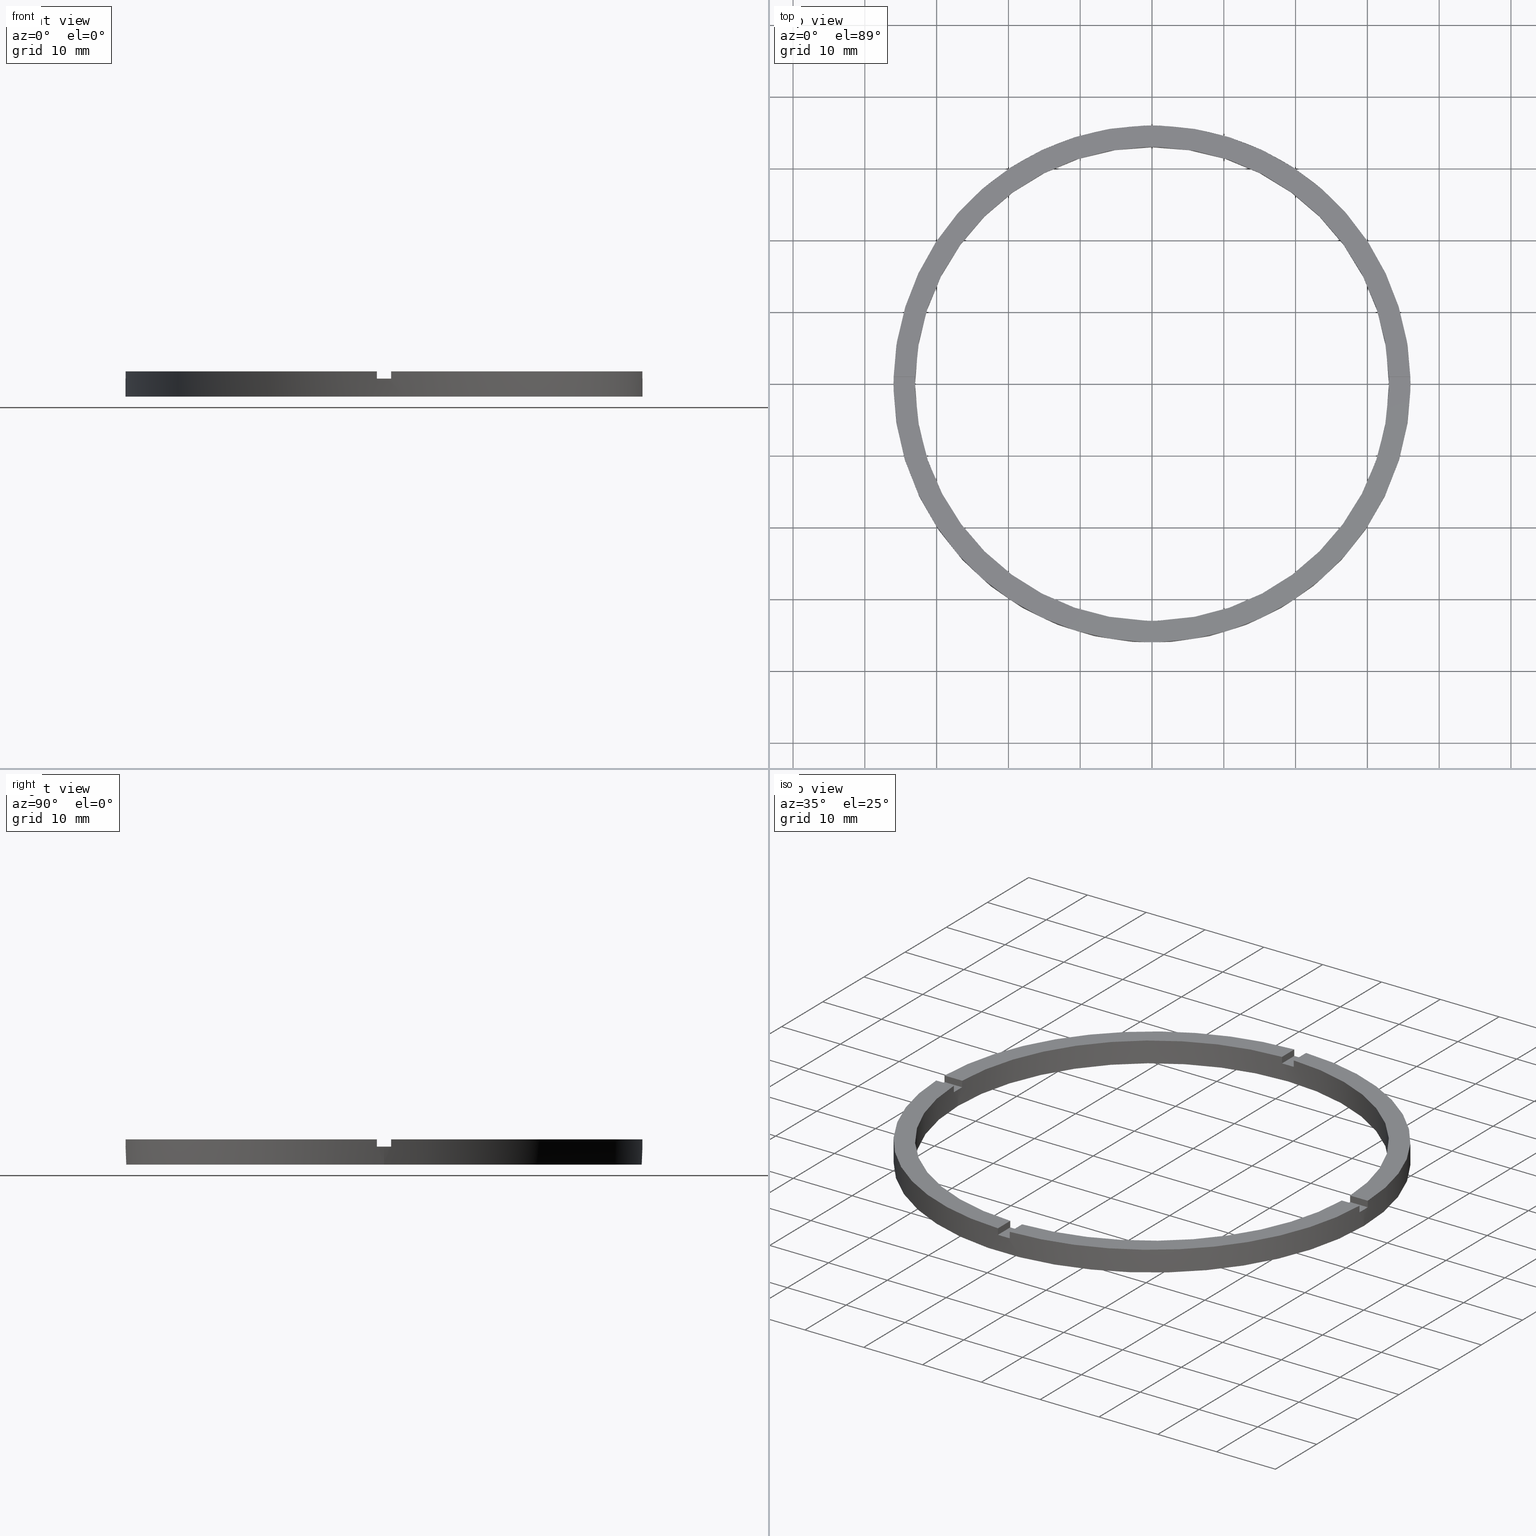
[diagram: canonical four-view strip — front | top / right | iso, engineering-drawing reading convention]
A machine part, canonical four-view strip (front | top / right | iso — engineering-drawing reading convention). The complete STEP part file that produces these views, byte-faithful:
ISO-10303-21;
HEADER;
FILE_DESCRIPTION (( 'STEP AP203' ),
    '1' );
FILE_NAME ('514148.step',
    '2024-12-26T02:42:11',
    ( 'MSI' ),
    ( '' ),
    'SwSTEP 2.0',
    'SolidWorks 2020',
    '' );
FILE_SCHEMA (( 'CONFIG_CONTROL_DESIGN' ));
ENDSEC;

DATA;
#1 = DIRECTION ( 'NONE',  ( -0.000000000000000000, -0.000000000000000000, -1.000000000000000000 ) ) ;
#2 = CARTESIAN_POINT ( 'NONE',  ( 0.9999999999998384625, -26.00000000000017408, 2.500000000000000000 ) ) ;
#3 = ADVANCED_FACE ( 'NONE', ( #52 ), #758, .F. ) ;
#4 = AXIS2_PLACEMENT_3D ( 'NONE', #393, #245, #534 ) ;
#5 = DIRECTION ( 'NONE',  ( -1.301042606982605074E-16, 1.000000000000000000, 0.000000000000000000 ) ) ;
#6 = CARTESIAN_POINT ( 'NONE',  ( 0.000000000000000000, 0.000000000000000000, 0.000000000000000000 ) ) ;
#7 = EDGE_CURVE ( 'NONE', #181, #356, #21, .T. ) ;
#8 = EDGE_CURVE ( 'NONE', #168, #124, #541, .T. ) ;
#9 = DIRECTION ( 'NONE',  ( 1.951563910473907735E-16, -1.000000000000000000, 0.000000000000000000 ) ) ;
#10 = AXIS2_PLACEMENT_3D ( 'NONE', #440, #682, #284 ) ;
#11 = LINE ( 'NONE', #764, #562 ) ;
#12 = CARTESIAN_POINT ( 'NONE',  ( -32.98484500494128469, -1.000000000000026645, 3.500000000000000000 ) ) ;
#13 = CIRCLE ( 'NONE', #56, 33.00000000000000000 ) ;
#14 = LINE ( 'NONE', #48, #533 ) ;
#15 = LINE ( 'NONE', #208, #17 ) ;
#16 = CARTESIAN_POINT ( 'NONE',  ( -32.98484500494128469, -1.000000000000026645, 3.500000000000000000 ) ) ;
#17 = VECTOR ( 'NONE', #385, 1000.000000000000000 ) ;
#18 = CARTESIAN_POINT ( 'NONE',  ( -32.98484500494129179, 0.9999999999999733546, 3.500000000000000000 ) ) ;
#19 = CARTESIAN_POINT ( 'NONE',  ( 0.000000000000000000, 0.000000000000000000, 3.500000000000000000 ) ) ;
#20 = CIRCLE ( 'NONE', #213, 36.00000000000000000 ) ;
#21 = LINE ( 'NONE', #710, #282 ) ;
#22 = DIRECTION ( 'NONE',  ( 0.000000000000000000, 0.000000000000000000, 1.000000000000000000 ) ) ;
#23 = EDGE_CURVE ( 'NONE', #322, #103, #267, .T. ) ;
#24 = LINE ( 'NONE', #230, #285 ) ;
#25 = VECTOR ( 'NONE', #231, 1000.000000000000000 ) ;
#26 = FACE_OUTER_BOUND ( 'NONE', #66, .T. ) ;
#27 = LINE ( 'NONE', #477, #288 ) ;
#28 = DIRECTION ( 'NONE',  ( 0.000000000000000000, 0.000000000000000000, 1.000000000000000000 ) ) ;
#29 = CIRCLE ( 'NONE', #518, 33.00000000000000000 ) ;
#30 = CARTESIAN_POINT ( 'NONE',  ( -32.98484500494129179, 0.9999999999999733546, 3.500000000000000000 ) ) ;
#31 = CIRCLE ( 'NONE', #675, 36.00000000000000000 ) ;
#32 = DIRECTION ( 'NONE',  ( 0.000000000000000000, 0.000000000000000000, 1.000000000000000000 ) ) ;
#33 = FACE_OUTER_BOUND ( 'NONE', #359, .T. ) ;
#34 = LINE ( 'NONE', #452, #281 ) ;
#35 = LINE ( 'NONE', #508, #297 ) ;
#36 = ORIENTED_EDGE ( 'NONE', *, *, #370, .F. ) ;
#37 = DIRECTION ( 'NONE',  ( 0.000000000000000000, 0.000000000000000000, 1.000000000000000000 ) ) ;
#38 = VECTOR ( 'NONE', #376, 1000.000000000000000 ) ;
#39 = CARTESIAN_POINT ( 'NONE',  ( 35.98610843089316091, 0.9999999999998421263, 3.500000000000000000 ) ) ;
#40 = VECTOR ( 'NONE', #273, 1000.000000000000000 ) ;
#41 = VERTEX_POINT ( 'NONE', #226 ) ;
#42 = CIRCLE ( 'NONE', #471, 36.00000000000000000 ) ;
#43 = ORIENTED_EDGE ( 'NONE', *, *, #690, .F. ) ;
#44 = VERTEX_POINT ( 'NONE', #564 ) ;
#45 = VERTEX_POINT ( 'NONE', #110 ) ;
#46 = VECTOR ( 'NONE', #260, 1000.000000000000000 ) ;
#47 = VERTEX_POINT ( 'NONE', #480 ) ;
#48 = CARTESIAN_POINT ( 'NONE',  ( 25.99999999999998934, 0.9999999999998414602, 3.500000000000000000 ) ) ;
#49 = ORIENTED_EDGE ( 'NONE', *, *, #751, .F. ) ;
#50 = CC_DESIGN_DATE_AND_TIME_ASSIGNMENT ( #605, #209, ( #771 ) ) ;
#51 = VECTOR ( 'NONE', #217, 1000.000000000000000 ) ;
#52 = FACE_OUTER_BOUND ( 'NONE', #293, .T. ) ;
#53 = LINE ( 'NONE', #773, #40 ) ;
#54 = ORIENTED_EDGE ( 'NONE', *, *, #407, .F. ) ;
#55 = ORIENTED_EDGE ( 'NONE', *, *, #259, .F. ) ;
#56 = AXIS2_PLACEMENT_3D ( 'NONE', #737, #130, #739 ) ;
#57 = APPROVAL_DATE_TIME ( #597, #653 ) ;
#58 = EDGE_CURVE ( 'NONE', #405, #451, #11, .T. ) ;
#59 = CARTESIAN_POINT ( 'NONE',  ( -1.000000000000025091, 32.98484500494128469, 2.500000000000000000 ) ) ;
#60 = DIRECTION ( 'NONE',  ( 0.000000000000000000, 0.000000000000000000, 1.000000000000000000 ) ) ;
#61 = CARTESIAN_POINT ( 'NONE',  ( -1.000000000000160760, -32.98484500494128469, 2.500000000000000000 ) ) ;
#62 = AXIS2_PLACEMENT_3D ( 'NONE', #733, #517, #484 ) ;
#63 = PERSON_AND_ORGANIZATION ( #528, #603 ) ;
#64 = DIRECTION ( 'NONE',  ( 0.000000000000000000, 0.000000000000000000, 1.000000000000000000 ) ) ;
#65 = APPROVAL_PERSON_ORGANIZATION ( #338, #653, #279 ) ;
#66 = EDGE_LOOP ( 'NONE', ( #448, #142, #657, #179 ) ) ;
#67 = DIRECTION ( 'NONE',  ( -1.000000000000000000, 0.000000000000000000, 0.000000000000000000 ) ) ;
#68 = CALENDAR_DATE ( 2024, 26, 12 ) ;
#69 = ORIENTED_EDGE ( 'NONE', *, *, #238, .F. ) ;
#70 = DIRECTION ( 'NONE',  ( 1.000000000000000000, 0.000000000000000000, 0.000000000000000000 ) ) ;
#71 = PERSON_AND_ORGANIZATION ( #528, #603 ) ;
#72 = EDGE_CURVE ( 'NONE', #654, #573, #552, .T. ) ;
#73 = PERSON_AND_ORGANIZATION ( #528, #603 ) ;
#74 = EDGE_LOOP ( 'NONE', ( #616, #183, #79, #698 ) ) ;
#75 = COORDINATED_UNIVERSAL_TIME_OFFSET ( 8, 0, .AHEAD. ) ;
#76 =( NAMED_UNIT ( * ) PLANE_ANGLE_UNIT ( ) SI_UNIT ( $, .RADIAN. ) );
#77 = VERTEX_POINT ( 'NONE', #774 ) ;
#78 = DIRECTION ( 'NONE',  ( -0.000000000000000000, -0.000000000000000000, -1.000000000000000000 ) ) ;
#79 = ORIENTED_EDGE ( 'NONE', *, *, #269, .F. ) ;
#80 = CARTESIAN_POINT ( 'NONE',  ( 0.000000000000000000, 0.000000000000000000, 3.500000000000000000 ) ) ;
#81 = CALENDAR_DATE ( 2024, 26, 12 ) ;
#82 = ORIENTED_EDGE ( 'NONE', *, *, #106, .T. ) ;
#83 = CALENDAR_DATE ( 2024, 26, 12 ) ;
#84 = LOCAL_TIME ( 10, 42, 11.00000000000000000, #331 ) ;
#85 = ADVANCED_FACE ( 'NONE', ( #274, #280 ), #778, .F. ) ;
#86 = APPROVAL_PERSON_ORGANIZATION ( #607, #542, #747 ) ;
#87 = CALENDAR_DATE ( 2024, 26, 12 ) ;
#88 = VECTOR ( 'NONE', #1, 1000.000000000000000 ) ;
#89 = ORIENTED_EDGE ( 'NONE', *, *, #759, .T. ) ;
#90 = CIRCLE ( 'NONE', #262, 33.00000000000000000 ) ;
#91 = DIRECTION ( 'NONE',  ( -0.000000000000000000, -0.000000000000000000, -1.000000000000000000 ) ) ;
#92 = ORIENTED_EDGE ( 'NONE', *, *, #192, .F. ) ;
#93 = AXIS2_PLACEMENT_3D ( 'NONE', #644, #78, #323 ) ;
#94 = VERTEX_POINT ( 'NONE', #523 ) ;
#95 = ORIENTED_EDGE ( 'NONE', *, *, #7, .T. ) ;
#96 = LINE ( 'NONE', #380, #121 ) ;
#97 = ORIENTED_EDGE ( 'NONE', *, *, #224, .F. ) ;
#98 = CC_DESIGN_PERSON_AND_ORGANIZATION_ASSIGNMENT ( #73, #203, ( #595 ) ) ;
#99 = DIRECTION ( 'NONE',  ( 1.301042606982605074E-16, -1.000000000000000000, 0.000000000000000000 ) ) ;
#100 = CIRCLE ( 'NONE', #350, 33.00000000000000000 ) ;
#101 = LINE ( 'NONE', #783, #399 ) ;
#102 = CARTESIAN_POINT ( 'NONE',  ( -1.000000000000160760, -32.98484500494128469, 3.500000000000000000 ) ) ;
#103 = VERTEX_POINT ( 'NONE', #59 ) ;
#104 = AXIS2_PLACEMENT_3D ( 'NONE', #681, #729, #237 ) ;
#105 = VERTEX_POINT ( 'NONE', #39 ) ;
#106 = EDGE_CURVE ( 'NONE', #405, #47, #532, .T. ) ;
#107 = CIRCLE ( 'NONE', #425, 36.00000000000000000 ) ;
#108 = CARTESIAN_POINT ( 'NONE',  ( 33.00000000000000000, 4.041334437186266200E-15, 0.000000000000000000 ) ) ;
#109 = ORIENTED_EDGE ( 'NONE', *, *, #160, .F. ) ;
#110 = CARTESIAN_POINT ( 'NONE',  ( 0.9999999999998397948, -35.98610843089316091, 2.500000000000000000 ) ) ;
#111 = AXIS2_PLACEMENT_3D ( 'NONE', #258, #28, #114 ) ;
#112 = VERTEX_POINT ( 'NONE', #487 ) ;
#113 = VERTEX_POINT ( 'NONE', #360 ) ;
#114 = DIRECTION ( 'NONE',  ( 1.000000000000000000, 0.000000000000000000, 0.000000000000000000 ) ) ;
#115 = VERTEX_POINT ( 'NONE', #673 ) ;
#116 = VECTOR ( 'NONE', #537, 1000.000000000000000 ) ;
#117 = EDGE_CURVE ( 'NONE', #168, #459, #277, .T. ) ;
#118 = CARTESIAN_POINT ( 'NONE',  ( 32.98484500494129179, 0.9999999999998419042, 3.500000000000000000 ) ) ;
#119 = DIRECTION ( 'NONE',  ( 0.000000000000000000, 0.000000000000000000, 1.000000000000000000 ) ) ;
#120 = ORIENTED_EDGE ( 'NONE', *, *, #612, .T. ) ;
#121 = VECTOR ( 'NONE', #442, 1000.000000000000000 ) ;
#122 = EDGE_CURVE ( 'NONE', #112, #164, #289, .T. ) ;
#123 = DIRECTION ( 'NONE',  ( 0.000000000000000000, 0.000000000000000000, 1.000000000000000000 ) ) ;
#124 = VERTEX_POINT ( 'NONE', #30 ) ;
#125 = CARTESIAN_POINT ( 'NONE',  ( 0.9999999999999749090, 32.98484500494129179, 3.500000000000000000 ) ) ;
#126 = VECTOR ( 'NONE', #212, 1000.000000000000000 ) ;
#127 = LINE ( 'NONE', #162, #384 ) ;
#128 = ORIENTED_EDGE ( 'NONE', *, *, #519, .T. ) ;
#129 = FACE_OUTER_BOUND ( 'NONE', #705, .T. ) ;
#130 = DIRECTION ( 'NONE',  ( 0.000000000000000000, 0.000000000000000000, 1.000000000000000000 ) ) ;
#131 = EDGE_LOOP ( 'NONE', ( #352, #667, #89, #201, #467, #575 ) ) ;
#132 = CARTESIAN_POINT ( 'NONE',  ( 0.000000000000000000, 0.000000000000000000, 2.500000000000000000 ) ) ;
#133 = VERTEX_POINT ( 'NONE', #125 ) ;
#134 = FACE_OUTER_BOUND ( 'NONE', #432, .T. ) ;
#135 = ORIENTED_EDGE ( 'NONE', *, *, #8, .F. ) ;
#136 = VECTOR ( 'NONE', #119, 1000.000000000000000 ) ;
#137 = ORIENTED_EDGE ( 'NONE', *, *, #497, .T. ) ;
#138 = DIRECTION ( 'NONE',  ( 0.000000000000000000, 0.000000000000000000, 1.000000000000000000 ) ) ;
#139 = ORIENTED_EDGE ( 'NONE', *, *, #7, .F. ) ;
#140 = CARTESIAN_POINT ( 'NONE',  ( 0.000000000000000000, 0.000000000000000000, 3.500000000000000000 ) ) ;
#141 = APPLICATION_PROTOCOL_DEFINITION ( 'international standard', 'config_control_design', 1994, #153 ) ;
#142 = ORIENTED_EDGE ( 'NONE', *, *, #269, .T. ) ;
#143 = VECTOR ( 'NONE', #123, 1000.000000000000000 ) ;
#144 = DIRECTION ( 'NONE',  ( 1.000000000000000000, 0.000000000000000000, 0.000000000000000000 ) ) ;
#145 = AXIS2_PLACEMENT_3D ( 'NONE', #140, #244, #286 ) ;
#146 = CARTESIAN_POINT ( 'NONE',  ( 25.99999999999998934, 0.9999999999998414602, 2.500000000000000000 ) ) ;
#147 = FACE_OUTER_BOUND ( 'NONE', #296, .T. ) ;
#148 = DIRECTION ( 'NONE',  ( 1.000000000000000000, 0.000000000000000000, 0.000000000000000000 ) ) ;
#149 = CIRCLE ( 'NONE', #479, 33.00000000000000000 ) ;
#150 = CC_DESIGN_PERSON_AND_ORGANIZATION_ASSIGNMENT ( #71, #627, ( #595 ) ) ;
#151 = DIRECTION ( 'NONE',  ( -0.000000000000000000, -0.000000000000000000, -1.000000000000000000 ) ) ;
#152 = DIRECTION ( 'NONE',  ( 1.000000000000000000, 0.000000000000000000, 0.000000000000000000 ) ) ;
#153 = APPLICATION_CONTEXT ( 'configuration controlled 3d designs of mechanical parts and assemblies' ) ;
#154 = CARTESIAN_POINT ( 'NONE',  ( 35.98610843089316091, 0.9999999999998421263, 3.500000000000000000 ) ) ;
#155 = EDGE_CURVE ( 'NONE', #105, #181, #14, .T. ) ;
#156 = AXIS2_PLACEMENT_3D ( 'NONE', #358, #765, #727 ) ;
#157 = PLANE ( 'NONE',  #429 ) ;
#158 = EDGE_CURVE ( 'NONE', #330, #41, #276, .T. ) ;
#159 = ADVANCED_FACE ( 'NONE', ( #26 ), #366, .T. ) ;
#160 = EDGE_CURVE ( 'NONE', #112, #624, #13, .T. ) ;
#161 = DIRECTION ( 'NONE',  ( 1.000000000000000000, 1.301042606982605074E-16, 0.000000000000000000 ) ) ;
#162 = CARTESIAN_POINT ( 'NONE',  ( -33.00000000000000000, 0.000000000000000000, 3.500000000000000000 ) ) ;
#163 = DIRECTION ( 'NONE',  ( 0.000000000000000000, 0.000000000000000000, 1.000000000000000000 ) ) ;
#164 = VERTEX_POINT ( 'NONE', #187 ) ;
#165 = DIRECTION ( 'NONE',  ( -0.000000000000000000, -0.000000000000000000, -1.000000000000000000 ) ) ;
#166 = ORIENTED_EDGE ( 'NONE', *, *, #612, .F. ) ;
#167 = DIRECTION ( 'NONE',  ( 1.000000000000000000, 0.000000000000000000, 0.000000000000000000 ) ) ;
#168 = VERTEX_POINT ( 'NONE', #431 ) ;
#169 = AXIS2_PLACEMENT_3D ( 'NONE', #182, #64, #227 ) ;
#170 = EDGE_LOOP ( 'NONE', ( #570, #439 ) ) ;
#171 = ORIENTED_EDGE ( 'NONE', *, *, #680, .T. ) ;
#172 = EDGE_CURVE ( 'NONE', #711, #115, #29, .T. ) ;
#173 = DIRECTION ( 'NONE',  ( 1.000000000000000000, 0.000000000000000000, -0.000000000000000000 ) ) ;
#174 = AXIS2_PLACEMENT_3D ( 'NONE', #606, #60, #378 ) ;
#175 = ORIENTED_EDGE ( 'NONE', *, *, #158, .T. ) ;
#176 = DIRECTION ( 'NONE',  ( -0.000000000000000000, 0.000000000000000000, 1.000000000000000000 ) ) ;
#177 = CARTESIAN_POINT ( 'NONE',  ( -1.000000000000025091, 35.98610843089315381, 3.500000000000000000 ) ) ;
#178 = ORIENTED_EDGE ( 'NONE', *, *, #720, .T. ) ;
#179 = ORIENTED_EDGE ( 'NONE', *, *, #58, .T. ) ;
#180 = PLANE ( 'NONE',  #186 ) ;
#181 = VERTEX_POINT ( 'NONE', #118 ) ;
#182 = CARTESIAN_POINT ( 'NONE',  ( 0.000000000000000000, 0.000000000000000000, 0.000000000000000000 ) ) ;
#183 = ORIENTED_EDGE ( 'NONE', *, *, #345, .T. ) ;
#184 = ORIENTED_EDGE ( 'NONE', *, *, #602, .T. ) ;
#185 = VERTEX_POINT ( 'NONE', #438 ) ;
#186 = AXIS2_PLACEMENT_3D ( 'NONE', #450, #502, #781 ) ;
#187 = CARTESIAN_POINT ( 'NONE',  ( 35.98610843089315381, -1.000000000000157874, 2.500000000000000000 ) ) ;
#188 = ORIENTED_EDGE ( 'NONE', *, *, #8, .T. ) ;
#189 = DIRECTION ( 'NONE',  ( 1.000000000000000000, 0.000000000000000000, 0.000000000000000000 ) ) ;
#190 = ORIENTED_EDGE ( 'NONE', *, *, #433, .T. ) ;
#191 = EDGE_LOOP ( 'NONE', ( #54, #43, #726, #568 ) ) ;
#192 = EDGE_CURVE ( 'NONE', #659, #356, #24, .T. ) ;
#193 = ORIENTED_EDGE ( 'NONE', *, *, #406, .T. ) ;
#194 = CARTESIAN_POINT ( 'NONE',  ( 0.000000000000000000, 0.000000000000000000, 2.500000000000000000 ) ) ;
#195 = CARTESIAN_POINT ( 'NONE',  ( 0.9999999999999749090, 25.99999999999999645, 2.500000000000000000 ) ) ;
#196 = DATE_TIME_ROLE ( 'classification_date' ) ;
#197 = ORIENTED_EDGE ( 'NONE', *, *, #602, .F. ) ;
#198 = EDGE_LOOP ( 'NONE', ( #578, #389, #613, #413, #109, #311 ) ) ;
#199 = ORIENTED_EDGE ( 'NONE', *, *, #721, .F. ) ;
#200 = CARTESIAN_POINT ( 'NONE',  ( 0.000000000000000000, 0.000000000000000000, 2.500000000000000000 ) ) ;
#201 = ORIENTED_EDGE ( 'NONE', *, *, #776, .F. ) ;
#202 = DIRECTION ( 'NONE',  ( 1.000000000000000000, -0.000000000000000000, 0.000000000000000000 ) ) ;
#203 = PERSON_AND_ORGANIZATION_ROLE ( 'design_supplier' ) ;
#204 = ORIENTED_EDGE ( 'NONE', *, *, #259, .T. ) ;
#205 = ORIENTED_EDGE ( 'NONE', *, *, #23, .F. ) ;
#206 = CARTESIAN_POINT ( 'NONE',  ( -26.00000000000018119, -1.000000000000025091, 2.500000000000000000 ) ) ;
#207 = ORIENTED_EDGE ( 'NONE', *, *, #664, .T. ) ;
#208 = CARTESIAN_POINT ( 'NONE',  ( 36.00000000000000000, 4.408728476930470856E-15, 3.500000000000000000 ) ) ;
#209 = DATE_TIME_ROLE ( 'creation_date' ) ;
#210 =( NAMED_UNIT ( * ) SI_UNIT ( $, .STERADIAN. ) SOLID_ANGLE_UNIT ( ) );
#211 = APPROVAL ( #404, 'δָ��' ) ;
#212 = DIRECTION ( 'NONE',  ( -0.000000000000000000, -1.000000000000000000, -0.000000000000000000 ) ) ;
#213 = AXIS2_PLACEMENT_3D ( 'NONE', #589, #526, #745 ) ;
#214 = EDGE_CURVE ( 'NONE', #105, #691, #270, .T. ) ;
#215 = ADVANCED_FACE ( 'NONE', ( #547 ), #674, .T. ) ;
#216 = VECTOR ( 'NONE', #91, 1000.000000000000000 ) ;
#217 = DIRECTION ( 'NONE',  ( -0.000000000000000000, -0.000000000000000000, -1.000000000000000000 ) ) ;
#218 = CARTESIAN_POINT ( 'NONE',  ( 0.000000000000000000, 0.000000000000000000, 2.500000000000000000 ) ) ;
#219 = DIRECTION ( 'NONE',  ( -0.000000000000000000, -0.000000000000000000, -1.000000000000000000 ) ) ;
#220 = EDGE_CURVE ( 'NONE', #663, #113, #20, .T. ) ;
#221 = DIRECTION ( 'NONE',  ( 0.000000000000000000, 0.000000000000000000, 1.000000000000000000 ) ) ;
#222 = ADVANCED_FACE ( 'NONE', ( #555 ), #271, .T. ) ;
#223 = CARTESIAN_POINT ( 'NONE',  ( 0.000000000000000000, 0.000000000000000000, 0.000000000000000000 ) ) ;
#224 = EDGE_CURVE ( 'NONE', #94, #691, #34, .T. ) ;
#225 = DIRECTION ( 'NONE',  ( -1.000000000000000000, 0.000000000000000000, 0.000000000000000000 ) ) ;
#226 = CARTESIAN_POINT ( 'NONE',  ( 36.00000000000000000, 4.408728476930470856E-15, 0.000000000000000000 ) ) ;
#227 = DIRECTION ( 'NONE',  ( 1.000000000000000000, 0.000000000000000000, 0.000000000000000000 ) ) ;
#228 = CARTESIAN_POINT ( 'NONE',  ( 0.000000000000000000, 0.000000000000000000, 3.500000000000000000 ) ) ;
#229 = CIRCLE ( 'NONE', #754, 36.00000000000000000 ) ;
#230 = CARTESIAN_POINT ( 'NONE',  ( 25.99999999999998934, 0.9999999999998414602, 2.500000000000000000 ) ) ;
#231 = DIRECTION ( 'NONE',  ( -0.000000000000000000, -0.000000000000000000, -1.000000000000000000 ) ) ;
#232 = DIRECTION ( 'NONE',  ( 0.000000000000000000, -0.000000000000000000, 1.000000000000000000 ) ) ;
#233 = AXIS2_PLACEMENT_3D ( 'NONE', #80, #250, #316 ) ;
#234 = DIRECTION ( 'NONE',  ( 1.000000000000000000, 0.000000000000000000, 0.000000000000000000 ) ) ;
#235 = VECTOR ( 'NONE', #165, 1000.000000000000000 ) ;
#236 = SECURITY_CLASSIFICATION ( '', '', #287 ) ;
#237 = DIRECTION ( 'NONE',  ( 1.000000000000000000, 0.000000000000000000, 0.000000000000000000 ) ) ;
#238 = EDGE_CURVE ( 'NONE', #576, #659, #31, .T. ) ;
#239 = DIRECTION ( 'NONE',  ( 0.000000000000000000, 0.000000000000000000, 1.000000000000000000 ) ) ;
#240 = EDGE_CURVE ( 'NONE', #624, #356, #538, .T. ) ;
#241 = EDGE_CURVE ( 'NONE', #576, #41, #15, .T. ) ;
#242 = DIRECTION ( 'NONE',  ( 0.000000000000000000, 0.000000000000000000, 1.000000000000000000 ) ) ;
#243 = DIRECTION ( 'NONE',  ( 1.000000000000000000, 0.000000000000000000, 0.000000000000000000 ) ) ;
#244 = DIRECTION ( 'NONE',  ( 0.000000000000000000, 0.000000000000000000, 1.000000000000000000 ) ) ;
#245 = DIRECTION ( 'NONE',  ( -0.000000000000000000, -0.000000000000000000, -1.000000000000000000 ) ) ;
#246 = EDGE_CURVE ( 'NONE', #663, #330, #551, .T. ) ;
#247 = DIRECTION ( 'NONE',  ( 1.000000000000000000, 0.000000000000000000, 0.000000000000000000 ) ) ;
#248 = MECHANICAL_CONTEXT ( 'NONE', #419, 'mechanical' ) ;
#249 = CARTESIAN_POINT ( 'NONE',  ( 0.9999999999998384625, -26.00000000000017408, 2.500000000000000000 ) ) ;
#250 = DIRECTION ( 'NONE',  ( 0.000000000000000000, 0.000000000000000000, 1.000000000000000000 ) ) ;
#251 = PLANE ( 'NONE',  #522 ) ;
#252 = ADVANCED_FACE ( 'NONE', ( #294 ), #157, .F. ) ;
#253 = DIRECTION ( 'NONE',  ( -0.000000000000000000, -0.000000000000000000, -1.000000000000000000 ) ) ;
#254 = AXIS2_PLACEMENT_3D ( 'NONE', #132, #685, #746 ) ;
#255 = CARTESIAN_POINT ( 'NONE',  ( 0.9999999999999749090, 25.99999999999999645, 2.500000000000000000 ) ) ;
#256 = CC_DESIGN_SECURITY_CLASSIFICATION ( #236, ( #595 ) ) ;
#257 = AXIS2_PLACEMENT_3D ( 'NONE', #409, #9, #514 ) ;
#258 = CARTESIAN_POINT ( 'NONE',  ( 0.000000000000000000, 0.000000000000000000, 3.500000000000000000 ) ) ;
#259 = EDGE_CURVE ( 'NONE', #124, #44, #35, .T. ) ;
#260 = DIRECTION ( 'NONE',  ( -0.000000000000000000, -0.000000000000000000, -1.000000000000000000 ) ) ;
#261 = EDGE_CURVE ( 'NONE', #115, #711, #375, .T. ) ;
#262 = AXIS2_PLACEMENT_3D ( 'NONE', #687, #621, #247 ) ;
#263 = DIRECTION ( 'NONE',  ( -0.000000000000000000, -0.000000000000000000, -1.000000000000000000 ) ) ;
#264 = DIRECTION ( 'NONE',  ( 0.000000000000000000, 0.000000000000000000, 1.000000000000000000 ) ) ;
#265 = EDGE_CURVE ( 'NONE', #133, #691, #641, .T. ) ;
#266 = CARTESIAN_POINT ( 'NONE',  ( 0.9999999999998397948, -35.98610843089316091, 3.500000000000000000 ) ) ;
#267 = LINE ( 'NONE', #703, #558 ) ;
#268 = CARTESIAN_POINT ( 'NONE',  ( 0.000000000000000000, 0.000000000000000000, 3.500000000000000000 ) ) ;
#269 = EDGE_CURVE ( 'NONE', #45, #47, #382, .T. ) ;
#270 = CIRCLE ( 'NONE', #546, 36.00000000000000000 ) ;
#271 = CYLINDRICAL_SURFACE ( 'NONE', #4, 36.00000000000000000 ) ;
#272 = CARTESIAN_POINT ( 'NONE',  ( 0.000000000000000000, 0.000000000000000000, 3.500000000000000000 ) ) ;
#273 = DIRECTION ( 'NONE',  ( -1.000000000000000000, -1.951563910473907735E-16, 0.000000000000000000 ) ) ;
#274 = FACE_OUTER_BOUND ( 'NONE', #170, .T. ) ;
#275 = VECTOR ( 'NONE', #283, 1000.000000000000000 ) ;
#276 = CIRCLE ( 'NONE', #169, 36.00000000000000000 ) ;
#277 = CIRCLE ( 'NONE', #401, 33.00000000000000000 ) ;
#278 = DIRECTION ( 'NONE',  ( -0.000000000000000000, -0.000000000000000000, -1.000000000000000000 ) ) ;
#279 = APPROVAL_ROLE ( '' ) ;
#280 = FACE_BOUND ( 'NONE', #722, .T. ) ;
#281 = VECTOR ( 'NONE', #503, 1000.000000000000000 ) ;
#282 = VECTOR ( 'NONE', #253, 1000.000000000000000 ) ;
#283 = DIRECTION ( 'NONE',  ( 1.000000000000000000, 6.505213034913025371E-17, 0.000000000000000000 ) ) ;
#284 = DIRECTION ( 'NONE',  ( 1.000000000000000000, 0.000000000000000000, 0.000000000000000000 ) ) ;
#285 = VECTOR ( 'NONE', #353, 1000.000000000000000 ) ;
#286 = DIRECTION ( 'NONE',  ( 1.000000000000000000, 0.000000000000000000, 0.000000000000000000 ) ) ;
#287 = SECURITY_CLASSIFICATION_LEVEL ( 'unclassified' ) ;
#288 = VECTOR ( 'NONE', #535, 1000.000000000000000 ) ;
#289 = LINE ( 'NONE', #670, #275 ) ;
#290 = FACE_OUTER_BOUND ( 'NONE', #732, .T. ) ;
#291 = VECTOR ( 'NONE', #151, 1000.000000000000000 ) ;
#292 = AXIS2_PLACEMENT_3D ( 'NONE', #671, #239, #367 ) ;
#293 = EDGE_LOOP ( 'NONE', ( #699, #730, #714, #694 ) ) ;
#294 = FACE_OUTER_BOUND ( 'NONE', #444, .T. ) ;
#295 = CARTESIAN_POINT ( 'NONE',  ( 0.000000000000000000, 0.000000000000000000, 2.500000000000000000 ) ) ;
#296 = EDGE_LOOP ( 'NONE', ( #302, #49, #700, #325 ) ) ;
#297 = VECTOR ( 'NONE', #463, 1000.000000000000000 ) ;
#298 = FACE_OUTER_BOUND ( 'NONE', #638, .T. ) ;
#299 = CC_DESIGN_PERSON_AND_ORGANIZATION_ASSIGNMENT ( #341, #619, ( #771 ) ) ;
#300 = LINE ( 'NONE', #708, #560 ) ;
#301 = FACE_OUTER_BOUND ( 'NONE', #600, .T. ) ;
#302 = ORIENTED_EDGE ( 'NONE', *, *, #72, .F. ) ;
#303 = CARTESIAN_POINT ( 'NONE',  ( 0.000000000000000000, 0.000000000000000000, 3.500000000000000000 ) ) ;
#304 = DIRECTION ( 'NONE',  ( 0.000000000000000000, 0.000000000000000000, 1.000000000000000000 ) ) ;
#305 = LINE ( 'NONE', #561, #313 ) ;
#306 = VERTEX_POINT ( 'NONE', #780 ) ;
#307 = ORIENTED_EDGE ( 'NONE', *, *, #433, .F. ) ;
#308 = CYLINDRICAL_SURFACE ( 'NONE', #587, 33.00000000000000000 ) ;
#309 = ORIENTED_EDGE ( 'NONE', *, *, #680, .F. ) ;
#310 = LINE ( 'NONE', #473, #577 ) ;
#311 = ORIENTED_EDGE ( 'NONE', *, *, #122, .T. ) ;
#312 = ORIENTED_EDGE ( 'NONE', *, *, #155, .F. ) ;
#313 = VECTOR ( 'NONE', #633, 1000.000000000000000 ) ;
#314 = ORIENTED_EDGE ( 'NONE', *, *, #430, .T. ) ;
#315 = CARTESIAN_POINT ( 'NONE',  ( 0.9999999999999749090, 32.98484500494129179, 2.500000000000000000 ) ) ;
#316 = DIRECTION ( 'NONE',  ( 1.000000000000000000, 0.000000000000000000, 0.000000000000000000 ) ) ;
#317 = CIRCLE ( 'NONE', #411, 36.00000000000000000 ) ;
#318 = EDGE_CURVE ( 'NONE', #306, #322, #374, .T. ) ;
#319 = PERSON_AND_ORGANIZATION ( #528, #603 ) ;
#320 = ORIENTED_EDGE ( 'NONE', *, *, #370, .T. ) ;
#321 = LINE ( 'NONE', #154, #88 ) ;
#322 = VERTEX_POINT ( 'NONE', #371 ) ;
#323 = DIRECTION ( 'NONE',  ( -1.000000000000000000, 0.000000000000000000, 0.000000000000000000 ) ) ;
#324 = EDGE_CURVE ( 'NONE', #94, #453, #357, .T. ) ;
#325 = ORIENTED_EDGE ( 'NONE', *, *, #721, .T. ) ;
#326 = CARTESIAN_POINT ( 'NONE',  ( 33.00000000000000000, 4.041334437186266200E-15, 2.500000000000000000 ) ) ;
#327 = DIRECTION ( 'NONE',  ( 0.000000000000000000, 1.000000000000000000, 0.000000000000000000 ) ) ;
#328 = ORIENTED_EDGE ( 'NONE', *, *, #246, .F. ) ;
#329 = COORDINATED_UNIVERSAL_TIME_OFFSET ( 8, 0, .AHEAD. ) ;
#330 = VERTEX_POINT ( 'NONE', #396 ) ;
#331 = COORDINATED_UNIVERSAL_TIME_OFFSET ( 8, 0, .AHEAD. ) ;
#332 = DIRECTION ( 'NONE',  ( 1.000000000000000000, 0.000000000000000000, 0.000000000000000000 ) ) ;
#333 = EDGE_LOOP ( 'NONE', ( #391, #95, #92, #665 ) ) ;
#334 = ADVANCED_FACE ( 'NONE', ( #129 ), #696, .F. ) ;
#335 = VECTOR ( 'NONE', #539, 1000.000000000000000 ) ;
#336 = ORIENTED_EDGE ( 'NONE', *, *, #678, .F. ) ;
#337 = PLANE ( 'NONE',  #62 ) ;
#338 = PERSON_AND_ORGANIZATION ( #528, #603 ) ;
#339 = ORIENTED_EDGE ( 'NONE', *, *, #241, .F. ) ;
#340 = CYLINDRICAL_SURFACE ( 'NONE', #549, 36.00000000000000000 ) ;
#341 = PERSON_AND_ORGANIZATION ( #528, #603 ) ;
#342 = ORIENTED_EDGE ( 'NONE', *, *, #418, .F. ) ;
#343 = DATE_AND_TIME ( #83, #611 ) ;
#344 = AXIS2_PLACEMENT_3D ( 'NONE', #496, #485, #524 ) ;
#345 = EDGE_CURVE ( 'NONE', #435, #47, #101, .T. ) ;
#346 = DIRECTION ( 'NONE',  ( -1.000000000000000000, -6.505213034913025371E-17, -0.000000000000000000 ) ) ;
#347 = LOCAL_TIME ( 10, 42, 11.00000000000000000, #610 ) ;
#348 = ORIENTED_EDGE ( 'NONE', *, *, #430, .F. ) ;
#349 = COORDINATED_UNIVERSAL_TIME_OFFSET ( 8, 0, .AHEAD. ) ;
#350 = AXIS2_PLACEMENT_3D ( 'NONE', #416, #615, #676 ) ;
#351 = LOCAL_TIME ( 10, 42, 11.00000000000000000, #349 ) ;
#352 = ORIENTED_EDGE ( 'NONE', *, *, #446, .T. ) ;
#353 = DIRECTION ( 'NONE',  ( -1.000000000000000000, -6.505213034913025371E-17, -0.000000000000000000 ) ) ;
#354 = ORIENTED_EDGE ( 'NONE', *, *, #172, .T. ) ;
#355 = ORIENTED_EDGE ( 'NONE', *, *, #23, .T. ) ;
#356 = VERTEX_POINT ( 'NONE', #741 ) ;
#357 = CIRCLE ( 'NONE', #254, 36.00000000000000000 ) ;
#358 = CARTESIAN_POINT ( 'NONE',  ( 0.000000000000000000, 0.000000000000000000, 3.500000000000000000 ) ) ;
#359 = EDGE_LOOP ( 'NONE', ( #443, #662, #139, #193, #470, #171, #205, #190, #135, #645, #437, #474 ) ) ;
#360 = CARTESIAN_POINT ( 'NONE',  ( -35.98610843089315381, -1.000000000000027089, 2.500000000000000000 ) ) ;
#361 = ORIENTED_EDGE ( 'NONE', *, *, #72, .T. ) ;
#362 = PLANE ( 'NONE',  #768 ) ;
#363 = LINE ( 'NONE', #255, #365 ) ;
#364 = VERTEX_POINT ( 'NONE', #689 ) ;
#365 = VECTOR ( 'NONE', #327, 1000.000000000000000 ) ;
#366 = PLANE ( 'NONE',  #104 ) ;
#367 = DIRECTION ( 'NONE',  ( 1.000000000000000000, 0.000000000000000000, -0.000000000000000000 ) ) ;
#368 = ORIENTED_EDGE ( 'NONE', *, *, #752, .T. ) ;
#369 = FACE_OUTER_BOUND ( 'NONE', #131, .T. ) ;
#370 = EDGE_CURVE ( 'NONE', #306, #44, #390, .T. ) ;
#371 = CARTESIAN_POINT ( 'NONE',  ( -1.000000000000025091, 32.98484500494128469, 3.500000000000000000 ) ) ;
#372 = FACE_OUTER_BOUND ( 'NONE', #636, .T. ) ;
#373 = ORIENTED_EDGE ( 'NONE', *, *, #324, .T. ) ;
#374 = LINE ( 'NONE', #626, #126 ) ;
#375 = CIRCLE ( 'NONE', #598, 33.00000000000000000 ) ;
#376 = DIRECTION ( 'NONE',  ( 1.301042606982605074E-16, -1.000000000000000000, 0.000000000000000000 ) ) ;
#377 = EDGE_LOOP ( 'NONE', ( #339, #640, #368, #734, #642, #620, #207, #199, #137, #736, #460, #175 ) ) ;
#378 = DIRECTION ( 'NONE',  ( 1.000000000000000000, 0.000000000000000000, -0.000000000000000000 ) ) ;
#379 = ORIENTED_EDGE ( 'NONE', *, *, #751, .T. ) ;
#380 = CARTESIAN_POINT ( 'NONE',  ( 25.99999999999998934, -1.000000000000158540, 3.500000000000000000 ) ) ;
#381 = LINE ( 'NONE', #557, #388 ) ;
#382 = LINE ( 'NONE', #2, #629 ) ;
#383 = ORIENTED_EDGE ( 'NONE', *, *, #483, .T. ) ;
#384 = VECTOR ( 'NONE', #219, 1000.000000000000000 ) ;
#385 = DIRECTION ( 'NONE',  ( -0.000000000000000000, -0.000000000000000000, -1.000000000000000000 ) ) ;
#386 = CYLINDRICAL_SURFACE ( 'NONE', #93, 33.00000000000000000 ) ;
#387 = FACE_OUTER_BOUND ( 'NONE', #333, .T. ) ;
#388 = VECTOR ( 'NONE', #760, 1000.000000000000000 ) ;
#389 = ORIENTED_EDGE ( 'NONE', *, *, #238, .T. ) ;
#390 = CIRCLE ( 'NONE', #233, 36.00000000000000000 ) ;
#391 = ORIENTED_EDGE ( 'NONE', *, *, #155, .T. ) ;
#392 = ORIENTED_EDGE ( 'NONE', *, *, #690, .T. ) ;
#393 = CARTESIAN_POINT ( 'NONE',  ( 0.000000000000000000, 0.000000000000000000, 3.500000000000000000 ) ) ;
#394 = ORIENTED_EDGE ( 'NONE', *, *, #241, .T. ) ;
#395 = DIRECTION ( 'NONE',  ( -0.000000000000000000, -0.000000000000000000, -1.000000000000000000 ) ) ;
#396 = CARTESIAN_POINT ( 'NONE',  ( -36.00000000000000000, 0.000000000000000000, 0.000000000000000000 ) ) ;
#397 = APPLICATION_PROTOCOL_DEFINITION ( 'international standard', 'config_control_design', 1994, #419 ) ;
#398 = CC_DESIGN_PERSON_AND_ORGANIZATION_ASSIGNMENT ( #63, #684, ( #236 ) ) ;
#399 = VECTOR ( 'NONE', #278, 1000.000000000000000 ) ;
#400 = ADVANCED_FACE ( 'NONE', ( #387 ), #492, .F. ) ;
#401 = AXIS2_PLACEMENT_3D ( 'NONE', #614, #242, #167 ) ;
#402 = VERTEX_POINT ( 'NONE', #777 ) ;
#403 = CARTESIAN_POINT ( 'NONE',  ( -1.000000000000160760, -32.98484500494128469, 3.500000000000000000 ) ) ;
#404 = APPROVAL_STATUS ( 'not_yet_approved' ) ;
#405 = VERTEX_POINT ( 'NONE', #61 ) ;
#406 = EDGE_CURVE ( 'NONE', #181, #133, #650, .T. ) ;
#407 = EDGE_CURVE ( 'NONE', #364, #458, #96, .T. ) ;
#408 = LINE ( 'NONE', #177, #46 ) ;
#409 = CARTESIAN_POINT ( 'NONE',  ( -26.00000000000018119, -1.000000000000025091, 2.500000000000000000 ) ) ;
#410 = ORIENTED_EDGE ( 'NONE', *, *, #483, .F. ) ;
#411 = AXIS2_PLACEMENT_3D ( 'NONE', #749, #630, #148 ) ;
#412 = LINE ( 'NONE', #102, #136 ) ;
#413 = ORIENTED_EDGE ( 'NONE', *, *, #240, .F. ) ;
#414 = CARTESIAN_POINT ( 'NONE',  ( 0.000000000000000000, 0.000000000000000000, 2.500000000000000000 ) ) ;
#415 = DIRECTION ( 'NONE',  ( 0.000000000000000000, -0.000000000000000000, 1.000000000000000000 ) ) ;
#416 = CARTESIAN_POINT ( 'NONE',  ( 0.000000000000000000, 0.000000000000000000, 3.500000000000000000 ) ) ;
#417 = ADVANCED_FACE ( 'NONE', ( #655 ), #618, .T. ) ;
#418 = EDGE_CURVE ( 'NONE', #459, #115, #127, .T. ) ;
#419 = APPLICATION_CONTEXT ( 'configuration controlled 3d designs of mechanical parts and assemblies' ) ;
#420 = DIRECTION ( 'NONE',  ( 1.000000000000000000, 0.000000000000000000, 0.000000000000000000 ) ) ;
#421 = DIRECTION ( 'NONE',  ( -0.000000000000000000, -0.000000000000000000, -1.000000000000000000 ) ) ;
#422 = DIRECTION ( 'NONE',  ( 1.000000000000000000, 0.000000000000000000, 0.000000000000000000 ) ) ;
#423 = CARTESIAN_POINT ( 'NONE',  ( -26.00000000000018119, 0.9999999999999749090, 2.500000000000000000 ) ) ;
#424 = CARTESIAN_POINT ( 'NONE',  ( 0.9999999999999749090, 35.98610843089316091, 3.500000000000000000 ) ) ;
#425 = AXIS2_PLACEMENT_3D ( 'NONE', #194, #138, #243 ) ;
#426 = CARTESIAN_POINT ( 'NONE',  ( 0.000000000000000000, 0.000000000000000000, 3.500000000000000000 ) ) ;
#427 = DIRECTION ( 'NONE',  ( -1.951563910473907735E-16, 1.000000000000000000, 0.000000000000000000 ) ) ;
#428 = CC_DESIGN_DATE_AND_TIME_ASSIGNMENT ( #343, #196, ( #236 ) ) ;
#429 = AXIS2_PLACEMENT_3D ( 'NONE', #195, #202, #550 ) ;
#430 = EDGE_CURVE ( 'NONE', #647, #94, #363, .T. ) ;
#431 = CARTESIAN_POINT ( 'NONE',  ( -32.98484500494129179, 0.9999999999999733546, 2.500000000000000000 ) ) ;
#432 = EDGE_LOOP ( 'NONE', ( #648, #704, #585, #342, #731, #336, #379, #472, #82, #697, #392, #197 ) ) ;
#433 = EDGE_CURVE ( 'NONE', #322, #124, #100, .T. ) ;
#434 = CARTESIAN_POINT ( 'NONE',  ( 0.9999999999998393507, -32.98484500494129179, 3.500000000000000000 ) ) ;
#435 = VERTEX_POINT ( 'NONE', #434 ) ;
#436 = AXIS2_PLACEMENT_3D ( 'NONE', #223, #163, #332 ) ;
#437 = ORIENTED_EDGE ( 'NONE', *, *, #418, .T. ) ;
#438 = CARTESIAN_POINT ( 'NONE',  ( -32.98484500494128469, -1.000000000000026645, 2.500000000000000000 ) ) ;
#439 = ORIENTED_EDGE ( 'NONE', *, *, #441, .F. ) ;
#440 = CARTESIAN_POINT ( 'NONE',  ( 0.000000000000000000, 0.000000000000000000, 0.000000000000000000 ) ) ;
#441 = EDGE_CURVE ( 'NONE', #41, #330, #639, .T. ) ;
#442 = DIRECTION ( 'NONE',  ( 1.000000000000000000, 6.505213034913025371E-17, 0.000000000000000000 ) ) ;
#443 = ORIENTED_EDGE ( 'NONE', *, *, #559, .F. ) ;
#444 = EDGE_LOOP ( 'NONE', ( #348, #178, #469, #97 ) ) ;
#445 = CARTESIAN_POINT ( 'NONE',  ( -36.00000000000000000, 0.000000000000000000, 3.500000000000000000 ) ) ;
#446 = EDGE_CURVE ( 'NONE', #652, #663, #107, .T. ) ;
#447 = DIRECTION ( 'NONE',  ( -1.000000000000000000, 0.000000000000000000, 0.000000000000000000 ) ) ;
#448 = ORIENTED_EDGE ( 'NONE', *, *, #761, .T. ) ;
#449 = ORIENTED_EDGE ( 'NONE', *, *, #664, .F. ) ;
#450 = CARTESIAN_POINT ( 'NONE',  ( 25.99999999999998934, -1.000000000000158540, 2.500000000000000000 ) ) ;
#451 = VERTEX_POINT ( 'NONE', #490 ) ;
#452 = CARTESIAN_POINT ( 'NONE',  ( 0.9999999999999749090, 35.98610843089316091, 3.500000000000000000 ) ) ;
#453 = VERTEX_POINT ( 'NONE', #531 ) ;
#454 = MANIFOLD_SOLID_BREP ( '�г�-����1', #713 ) ;
#455 = ADVANCED_FACE ( 'NONE', ( #369 ), #775, .T. ) ;
#456 = CARTESIAN_POINT ( 'NONE',  ( 33.00000000000000000, 4.041334437186266200E-15, 3.500000000000000000 ) ) ;
#457 = DIRECTION ( 'NONE',  ( -1.301042606982605074E-16, 1.000000000000000000, -0.000000000000000000 ) ) ;
#458 = VERTEX_POINT ( 'NONE', #740 ) ;
#459 = VERTEX_POINT ( 'NONE', #770 ) ;
#460 = ORIENTED_EDGE ( 'NONE', *, *, #246, .T. ) ;
#461 = ORIENTED_EDGE ( 'NONE', *, *, #519, .F. ) ;
#462 = CARTESIAN_POINT ( 'NONE',  ( 35.98610843089316091, 0.9999999999998421263, 2.500000000000000000 ) ) ;
#463 = DIRECTION ( 'NONE',  ( -1.000000000000000000, -1.951563910473907735E-16, 0.000000000000000000 ) ) ;
#464 = ORIENTED_EDGE ( 'NONE', *, *, #261, .T. ) ;
#465 = ADVANCED_FACE ( 'NONE', ( #372 ), #767, .F. ) ;
#466 = ORIENTED_EDGE ( 'NONE', *, *, #441, .T. ) ;
#467 = ORIENTED_EDGE ( 'NONE', *, *, #117, .F. ) ;
#468 = ORIENTED_EDGE ( 'NONE', *, *, #779, .T. ) ;
#469 = ORIENTED_EDGE ( 'NONE', *, *, #265, .T. ) ;
#470 = ORIENTED_EDGE ( 'NONE', *, *, #720, .F. ) ;
#471 = AXIS2_PLACEMENT_3D ( 'NONE', #414, #221, #152 ) ;
#472 = ORIENTED_EDGE ( 'NONE', *, *, #481, .F. ) ;
#473 = CARTESIAN_POINT ( 'NONE',  ( -35.98610843089316091, 0.9999999999999729106, 3.500000000000000000 ) ) ;
#474 = ORIENTED_EDGE ( 'NONE', *, *, #172, .F. ) ;
#475 = CC_DESIGN_APPROVAL ( #211, ( #595 ) ) ;
#476 = ADVANCED_FACE ( 'NONE', ( #643 ), #599, .T. ) ;
#477 = CARTESIAN_POINT ( 'NONE',  ( -1.000000000000025091, 25.99999999999999645, 2.500000000000000000 ) ) ;
#478 = DIRECTION ( 'NONE',  ( 1.000000000000000000, 0.000000000000000000, 0.000000000000000000 ) ) ;
#479 = AXIS2_PLACEMENT_3D ( 'NONE', #426, #769, #766 ) ;
#480 = CARTESIAN_POINT ( 'NONE',  ( 0.9999999999998393507, -32.98484500494129179, 2.500000000000000000 ) ) ;
#481 = EDGE_CURVE ( 'NONE', #405, #654, #412, .T. ) ;
#482 = CARTESIAN_POINT ( 'NONE',  ( 0.000000000000000000, 0.000000000000000000, 0.000000000000000000 ) ) ;
#483 = EDGE_CURVE ( 'NONE', #306, #453, #408, .T. ) ;
#484 = DIRECTION ( 'NONE',  ( 1.000000000000000000, 0.000000000000000000, -0.000000000000000000 ) ) ;
#485 = DIRECTION ( 'NONE',  ( 0.000000000000000000, 0.000000000000000000, 1.000000000000000000 ) ) ;
#486 = CARTESIAN_POINT ( 'NONE',  ( -35.98610843089315381, -1.000000000000027089, 3.500000000000000000 ) ) ;
#487 = CARTESIAN_POINT ( 'NONE',  ( 32.98484500494128469, -1.000000000000158096, 2.500000000000000000 ) ) ;
#488 = UNCERTAINTY_MEASURE_WITH_UNIT (LENGTH_MEASURE( 1.000000000000000082E-05 ), #742, 'distance_accuracy_value', 'NONE');
#489 = CARTESIAN_POINT ( 'NONE',  ( 0.000000000000000000, 0.000000000000000000, 0.000000000000000000 ) ) ;
#490 = CARTESIAN_POINT ( 'NONE',  ( -1.000000000000160316, -35.98610843089315381, 2.500000000000000000 ) ) ;
#491 = PRODUCT ( '514148', '514148', '', ( #248 ) ) ;
#492 = PLANE ( 'NONE',  #743 ) ;
#493 = LINE ( 'NONE', #206, #335 ) ;
#494 = AXIS2_PLACEMENT_3D ( 'NONE', #200, #622, #70 ) ;
#495 = EDGE_CURVE ( 'NONE', #168, #652, #53, .T. ) ;
#496 = CARTESIAN_POINT ( 'NONE',  ( 0.000000000000000000, 0.000000000000000000, 2.500000000000000000 ) ) ;
#497 = EDGE_CURVE ( 'NONE', #77, #113, #554, .T. ) ;
#498 = AXIS2_PLACEMENT_3D ( 'NONE', #19, #32, #527 ) ;
#499 = CIRCLE ( 'NONE', #111, 33.00000000000000000 ) ;
#500 = FACE_OUTER_BOUND ( 'NONE', #594, .T. ) ;
#501 = APPROVAL_ROLE ( '' ) ;
#502 = DIRECTION ( 'NONE',  ( 6.505213034913025371E-17, -1.000000000000000000, 0.000000000000000000 ) ) ;
#503 = DIRECTION ( 'NONE',  ( 0.000000000000000000, 0.000000000000000000, 1.000000000000000000 ) ) ;
#504 = CARTESIAN_POINT ( 'NONE',  ( -1.000000000000160316, -35.98610843089315381, 3.500000000000000000 ) ) ;
#505 = CARTESIAN_POINT ( 'NONE',  ( -1.000000000000025091, 25.99999999999999645, 2.500000000000000000 ) ) ;
#506 = CIRCLE ( 'NONE', #156, 36.00000000000000000 ) ;
#507 = CARTESIAN_POINT ( 'NONE',  ( -35.98610843089316091, 0.9999999999999729106, 2.500000000000000000 ) ) ;
#508 = CARTESIAN_POINT ( 'NONE',  ( -26.00000000000018119, 0.9999999999999749090, 3.500000000000000000 ) ) ;
#509 = ADVANCED_FACE ( 'NONE', ( #301 ), #590, .T. ) ;
#510 = CARTESIAN_POINT ( 'NONE',  ( -36.00000000000000000, 0.000000000000000000, 2.500000000000000000 ) ) ;
#511 = DIRECTION ( 'NONE',  ( 0.000000000000000000, 0.000000000000000000, 1.000000000000000000 ) ) ;
#512 = PRODUCT_RELATED_PRODUCT_CATEGORY ( 'detail', '', ( #491 ) ) ;
#513 = ADVANCED_BREP_SHAPE_REPRESENTATION ( '514148', ( #454, #436 ), #658 ) ;
#514 = DIRECTION ( 'NONE',  ( 1.000000000000000000, 1.951563910473907735E-16, 0.000000000000000000 ) ) ;
#515 = ADVANCED_FACE ( 'NONE', ( #298 ), #362, .F. ) ;
#516 = CC_DESIGN_APPROVAL ( #653, ( #771 ) ) ;
#517 = DIRECTION ( 'NONE',  ( 0.000000000000000000, 0.000000000000000000, 1.000000000000000000 ) ) ;
#518 = AXIS2_PLACEMENT_3D ( 'NONE', #489, #738, #529 ) ;
#519 = EDGE_CURVE ( 'NONE', #453, #103, #27, .T. ) ;
#520 = CARTESIAN_POINT ( 'NONE',  ( -1.000000000000161648, -26.00000000000017408, 2.500000000000000000 ) ) ;
#521 = DIRECTION ( 'NONE',  ( 0.000000000000000000, 0.000000000000000000, 1.000000000000000000 ) ) ;
#522 = AXIS2_PLACEMENT_3D ( 'NONE', #249, #161, #5 ) ;
#523 = CARTESIAN_POINT ( 'NONE',  ( 0.9999999999999749090, 35.98610843089316091, 2.500000000000000000 ) ) ;
#524 = DIRECTION ( 'NONE',  ( 1.000000000000000000, 0.000000000000000000, -0.000000000000000000 ) ) ;
#525 = EDGE_CURVE ( 'NONE', #164, #576, #42, .T. ) ;
#526 = DIRECTION ( 'NONE',  ( 0.000000000000000000, 0.000000000000000000, 1.000000000000000000 ) ) ;
#527 = DIRECTION ( 'NONE',  ( 1.000000000000000000, 0.000000000000000000, -0.000000000000000000 ) ) ;
#528 = PERSON ( 'δָ��', 'δָ��', 'δָ��', ('δָ��'), ('δָ��'), ('δָ��') ) ;
#529 = DIRECTION ( 'NONE',  ( 1.000000000000000000, 0.000000000000000000, 0.000000000000000000 ) ) ;
#530 = DIRECTION ( 'NONE',  ( 0.000000000000000000, 0.000000000000000000, 1.000000000000000000 ) ) ;
#531 = CARTESIAN_POINT ( 'NONE',  ( -1.000000000000025091, 35.98610843089315381, 2.500000000000000000 ) ) ;
#532 = CIRCLE ( 'NONE', #715, 33.00000000000000000 ) ;
#533 = VECTOR ( 'NONE', #346, 1000.000000000000000 ) ;
#534 = DIRECTION ( 'NONE',  ( -1.000000000000000000, 0.000000000000000000, 0.000000000000000000 ) ) ;
#535 = DIRECTION ( 'NONE',  ( -0.000000000000000000, -1.000000000000000000, -0.000000000000000000 ) ) ;
#536 = AXIS2_PLACEMENT_3D ( 'NONE', #505, #67, #544 ) ;
#537 = DIRECTION ( 'NONE',  ( 0.000000000000000000, 1.000000000000000000, 0.000000000000000000 ) ) ;
#538 = CIRCLE ( 'NONE', #494, 33.00000000000000000 ) ;
#539 = DIRECTION ( 'NONE',  ( 1.000000000000000000, 1.951563910473907735E-16, -0.000000000000000000 ) ) ;
#540 = ADVANCED_FACE ( 'NONE', ( #33 ), #308, .F. ) ;
#541 = LINE ( 'NONE', #18, #565 ) ;
#542 = APPROVAL ( #756, 'δָ��' ) ;
#543 = CARTESIAN_POINT ( 'NONE',  ( 36.00000000000000000, 4.408728476930470856E-15, 2.500000000000000000 ) ) ;
#544 = DIRECTION ( 'NONE',  ( 0.000000000000000000, 0.000000000000000000, 1.000000000000000000 ) ) ;
#545 = APPROVAL_STATUS ( 'not_yet_approved' ) ;
#546 = AXIS2_PLACEMENT_3D ( 'NONE', #268, #264, #234 ) ;
#547 = FACE_OUTER_BOUND ( 'NONE', #198, .T. ) ;
#548 = EDGE_CURVE ( 'NONE', #402, #435, #300, .T. ) ;
#549 = AXIS2_PLACEMENT_3D ( 'NONE', #228, #421, #225 ) ;
#550 = DIRECTION ( 'NONE',  ( 0.000000000000000000, 0.000000000000000000, -1.000000000000000000 ) ) ;
#551 = LINE ( 'NONE', #445, #291 ) ;
#552 = LINE ( 'NONE', #656, #38 ) ;
#553 = VECTOR ( 'NONE', #521, 1000.000000000000000 ) ;
#554 = LINE ( 'NONE', #486, #25 ) ;
#555 = FACE_OUTER_BOUND ( 'NONE', #377, .T. ) ;
#556 = EDGE_CURVE ( 'NONE', #77, #632, #563, .T. ) ;
#557 = CARTESIAN_POINT ( 'NONE',  ( -1.000000000000160316, -35.98610843089315381, 3.500000000000000000 ) ) ;
#558 = VECTOR ( 'NONE', #263, 1000.000000000000000 ) ;
#559 = EDGE_CURVE ( 'NONE', #624, #711, #571, .T. ) ;
#560 = VECTOR ( 'NONE', #763, 1000.000000000000000 ) ;
#561 = CARTESIAN_POINT ( 'NONE',  ( 32.98484500494128469, -1.000000000000158096, 3.500000000000000000 ) ) ;
#562 = VECTOR ( 'NONE', #99, 1000.000000000000000 ) ;
#563 = LINE ( 'NONE', #625, #566 ) ;
#564 = CARTESIAN_POINT ( 'NONE',  ( -35.98610843089316091, 0.9999999999999729106, 3.500000000000000000 ) ) ;
#565 = VECTOR ( 'NONE', #22, 1000.000000000000000 ) ;
#566 = VECTOR ( 'NONE', #755, 1000.000000000000000 ) ;
#567 = ORIENTED_EDGE ( 'NONE', *, *, #224, .T. ) ;
#568 = ORIENTED_EDGE ( 'NONE', *, *, #686, .T. ) ;
#569 = ORIENTED_EDGE ( 'NONE', *, *, #318, .F. ) ;
#570 = ORIENTED_EDGE ( 'NONE', *, *, #158, .F. ) ;
#571 = LINE ( 'NONE', #456, #51 ) ;
#572 = DIRECTION ( 'NONE',  ( -1.000000000000000000, -1.301042606982605074E-16, 0.000000000000000000 ) ) ;
#573 = VERTEX_POINT ( 'NONE', #504 ) ;
#574 = CARTESIAN_POINT ( 'NONE',  ( 35.98610843089315381, -1.000000000000157874, 3.500000000000000000 ) ) ;
#575 = ORIENTED_EDGE ( 'NONE', *, *, #495, .T. ) ;
#576 = VERTEX_POINT ( 'NONE', #543 ) ;
#577 = VECTOR ( 'NONE', #688, 1000.000000000000000 ) ;
#578 = ORIENTED_EDGE ( 'NONE', *, *, #525, .T. ) ;
#579 = ORIENTED_EDGE ( 'NONE', *, *, #446, .F. ) ;
#580 = SHAPE_DEFINITION_REPRESENTATION ( #695, #513 ) ;
#581 = CARTESIAN_POINT ( 'NONE',  ( 0.000000000000000000, 0.000000000000000000, 2.500000000000000000 ) ) ;
#582 = DIRECTION ( 'NONE',  ( -1.000000000000000000, -1.951563910473907735E-16, 0.000000000000000000 ) ) ;
#583 = APPROVAL_PERSON_ORGANIZATION ( #591, #211, #501 ) ;
#584 = CALENDAR_DATE ( 2024, 26, 12 ) ;
#585 = ORIENTED_EDGE ( 'NONE', *, *, #261, .F. ) ;
#586 = DATE_AND_TIME ( #584, #351 ) ;
#587 = AXIS2_PLACEMENT_3D ( 'NONE', #303, #395, #447 ) ;
#588 = ORIENTED_EDGE ( 'NONE', *, *, #324, .F. ) ;
#589 = CARTESIAN_POINT ( 'NONE',  ( 0.000000000000000000, 0.000000000000000000, 2.500000000000000000 ) ) ;
#590 = PLANE ( 'NONE',  #292 ) ;
#591 = PERSON_AND_ORGANIZATION ( #528, #603 ) ;
#592 = ORIENTED_EDGE ( 'NONE', *, *, #265, .F. ) ;
#593 = DATE_AND_TIME ( #87, #347 ) ;
#594 = EDGE_LOOP ( 'NONE', ( #69, #394, #466, #328, #579, #120, #36, #383, #588, #567, #709, #468 ) ) ;
#595 = PRODUCT_DEFINITION_FORMATION_WITH_SPECIFIED_SOURCE ( '�κ�', '', #491, .NOT_KNOWN. ) ;
#596 = APPROVAL_DATE_TIME ( #593, #211 ) ;
#597 = DATE_AND_TIME ( #81, #601 ) ;
#598 = AXIS2_PLACEMENT_3D ( 'NONE', #6, #304, #189 ) ;
#599 = PLANE ( 'NONE',  #498 ) ;
#600 = EDGE_LOOP ( 'NONE', ( #569, #320, #55, #307 ) ) ;
#601 = LOCAL_TIME ( 10, 42, 11.00000000000000000, #329 ) ;
#602 = EDGE_CURVE ( 'NONE', #112, #364, #305, .T. ) ;
#603 = ORGANIZATION ( 'δָ��', 'δָ��', '' ) ;
#604 = AXIS2_PLACEMENT_3D ( 'NONE', #218, #415, #420 ) ;
#605 = DATE_AND_TIME ( #68, #84 ) ;
#606 = CARTESIAN_POINT ( 'NONE',  ( 0.000000000000000000, 0.000000000000000000, 2.500000000000000000 ) ) ;
#607 = PERSON_AND_ORGANIZATION ( #528, #603 ) ;
#608 = DIRECTION ( 'NONE',  ( -6.505213034913025371E-17, 1.000000000000000000, 0.000000000000000000 ) ) ;
#609 = PERSON_AND_ORGANIZATION_ROLE ( 'design_owner' ) ;
#610 = COORDINATED_UNIVERSAL_TIME_OFFSET ( 8, 0, .AHEAD. ) ;
#611 = LOCAL_TIME ( 10, 42, 11.00000000000000000, #75 ) ;
#612 = EDGE_CURVE ( 'NONE', #652, #44, #310, .T. ) ;
#613 = ORIENTED_EDGE ( 'NONE', *, *, #192, .T. ) ;
#614 = CARTESIAN_POINT ( 'NONE',  ( 0.000000000000000000, 0.000000000000000000, 2.500000000000000000 ) ) ;
#615 = DIRECTION ( 'NONE',  ( 0.000000000000000000, 0.000000000000000000, 1.000000000000000000 ) ) ;
#616 = ORIENTED_EDGE ( 'NONE', *, *, #548, .T. ) ;
#617 = APPROVAL_DATE_TIME ( #586, #542 ) ;
#618 = PLANE ( 'NONE',  #706 ) ;
#619 = PERSON_AND_ORGANIZATION_ROLE ( 'creator' ) ;
#620 = ORIENTED_EDGE ( 'NONE', *, *, #761, .F. ) ;
#621 = DIRECTION ( 'NONE',  ( 0.000000000000000000, 0.000000000000000000, 1.000000000000000000 ) ) ;
#622 = DIRECTION ( 'NONE',  ( 0.000000000000000000, 0.000000000000000000, 1.000000000000000000 ) ) ;
#623 = ADVANCED_FACE ( 'NONE', ( #134 ), #386, .F. ) ;
#624 = VERTEX_POINT ( 'NONE', #326 ) ;
#625 = CARTESIAN_POINT ( 'NONE',  ( -26.00000000000018119, -1.000000000000025091, 3.500000000000000000 ) ) ;
#626 = CARTESIAN_POINT ( 'NONE',  ( -1.000000000000025091, 25.99999999999999645, 3.500000000000000000 ) ) ;
#627 = PERSON_AND_ORGANIZATION_ROLE ( 'creator' ) ;
#628 = ORIENTED_EDGE ( 'NONE', *, *, #122, .F. ) ;
#629 = VECTOR ( 'NONE', #457, 1000.000000000000000 ) ;
#630 = DIRECTION ( 'NONE',  ( -0.000000000000000000, 0.000000000000000000, 1.000000000000000000 ) ) ;
#631 = EDGE_LOOP ( 'NONE', ( #592, #707, #312, #719 ) ) ;
#632 = VERTEX_POINT ( 'NONE', #16 ) ;
#633 = DIRECTION ( 'NONE',  ( 0.000000000000000000, 0.000000000000000000, 1.000000000000000000 ) ) ;
#634 = CARTESIAN_POINT ( 'NONE',  ( 0.9999999999999749090, 25.99999999999999645, 3.500000000000000000 ) ) ;
#635 = EDGE_LOOP ( 'NONE', ( #373, #128, #309, #314 ) ) ;
#636 = EDGE_LOOP ( 'NONE', ( #693, #188, #204, #166 ) ) ;
#637 = LINE ( 'NONE', #12, #216 ) ;
#638 = EDGE_LOOP ( 'NONE', ( #716, #660, #361, #449 ) ) ;
#639 = CIRCLE ( 'NONE', #10, 36.00000000000000000 ) ;
#640 = ORIENTED_EDGE ( 'NONE', *, *, #525, .F. ) ;
#641 = LINE ( 'NONE', #634, #116 ) ;
#642 = ORIENTED_EDGE ( 'NONE', *, *, #735, .T. ) ;
#643 = FACE_OUTER_BOUND ( 'NONE', #191, .T. ) ;
#644 = CARTESIAN_POINT ( 'NONE',  ( 0.000000000000000000, 0.000000000000000000, 3.500000000000000000 ) ) ;
#645 = ORIENTED_EDGE ( 'NONE', *, *, #117, .T. ) ;
#646 = ADVANCED_FACE ( 'NONE', ( #651 ), #251, .F. ) ;
#647 = VERTEX_POINT ( 'NONE', #315 ) ;
#648 = ORIENTED_EDGE ( 'NONE', *, *, #160, .T. ) ;
#649 = AXIS2_PLACEMENT_3D ( 'NONE', #423, #427, #582 ) ;
#650 = CIRCLE ( 'NONE', #145, 33.00000000000000000 ) ;
#651 = FACE_OUTER_BOUND ( 'NONE', #74, .T. ) ;
#652 = VERTEX_POINT ( 'NONE', #507 ) ;
#653 = APPROVAL ( #545, 'δָ��' ) ;
#654 = VERTEX_POINT ( 'NONE', #403 ) ;
#655 = FACE_OUTER_BOUND ( 'NONE', #631, .T. ) ;
#656 = CARTESIAN_POINT ( 'NONE',  ( -1.000000000000161648, -26.00000000000017408, 3.500000000000000000 ) ) ;
#657 = ORIENTED_EDGE ( 'NONE', *, *, #106, .F. ) ;
#658 =( GEOMETRIC_REPRESENTATION_CONTEXT ( 3 ) GLOBAL_UNCERTAINTY_ASSIGNED_CONTEXT ( ( #488 ) ) GLOBAL_UNIT_ASSIGNED_CONTEXT ( ( #742, #76, #210 ) ) REPRESENTATION_CONTEXT ( 'NONE', 'WORKASPACE' ) );
#659 = VERTEX_POINT ( 'NONE', #462 ) ;
#660 = ORIENTED_EDGE ( 'NONE', *, *, #481, .T. ) ;
#661 = CARTESIAN_POINT ( 'NONE',  ( 0.9999999999999749090, 32.98484500494129179, 3.500000000000000000 ) ) ;
#662 = ORIENTED_EDGE ( 'NONE', *, *, #240, .T. ) ;
#663 = VERTEX_POINT ( 'NONE', #510 ) ;
#664 = EDGE_CURVE ( 'NONE', #451, #573, #381, .T. ) ;
#665 = ORIENTED_EDGE ( 'NONE', *, *, #779, .F. ) ;
#666 = DESIGN_CONTEXT ( 'detailed design', #153, 'design' ) ;
#667 = ORIENTED_EDGE ( 'NONE', *, *, #220, .T. ) ;
#668 = PLANE ( 'NONE',  #723 ) ;
#669 = LINE ( 'NONE', #661, #143 ) ;
#670 = CARTESIAN_POINT ( 'NONE',  ( 25.99999999999998934, -1.000000000000158540, 2.500000000000000000 ) ) ;
#671 = CARTESIAN_POINT ( 'NONE',  ( 0.000000000000000000, 0.000000000000000000, 3.500000000000000000 ) ) ;
#672 = LINE ( 'NONE', #574, #553 ) ;
#673 = CARTESIAN_POINT ( 'NONE',  ( -33.00000000000000000, 0.000000000000000000, 0.000000000000000000 ) ) ;
#674 = PLANE ( 'NONE',  #344 ) ;
#675 = AXIS2_PLACEMENT_3D ( 'NONE', #295, #782, #144 ) ;
#676 = DIRECTION ( 'NONE',  ( 1.000000000000000000, 0.000000000000000000, 0.000000000000000000 ) ) ;
#677 = DIRECTION ( 'NONE',  ( -1.000000000000000000, -6.505213034913025371E-17, 0.000000000000000000 ) ) ;
#678 = EDGE_CURVE ( 'NONE', #632, #185, #637, .T. ) ;
#679 = FACE_OUTER_BOUND ( 'NONE', #635, .T. ) ;
#680 = EDGE_CURVE ( 'NONE', #647, #103, #753, .T. ) ;
#681 = CARTESIAN_POINT ( 'NONE',  ( 0.000000000000000000, 0.000000000000000000, 2.500000000000000000 ) ) ;
#682 = DIRECTION ( 'NONE',  ( 0.000000000000000000, 0.000000000000000000, 1.000000000000000000 ) ) ;
#683 = CARTESIAN_POINT ( 'NONE',  ( 0.000000000000000000, 0.000000000000000000, 3.500000000000000000 ) ) ;
#684 = PERSON_AND_ORGANIZATION_ROLE ( 'classification_officer' ) ;
#685 = DIRECTION ( 'NONE',  ( 0.000000000000000000, -0.000000000000000000, 1.000000000000000000 ) ) ;
#686 = EDGE_CURVE ( 'NONE', #402, #458, #229, .T. ) ;
#687 = CARTESIAN_POINT ( 'NONE',  ( 0.000000000000000000, 0.000000000000000000, 2.500000000000000000 ) ) ;
#688 = DIRECTION ( 'NONE',  ( 0.000000000000000000, 0.000000000000000000, 1.000000000000000000 ) ) ;
#689 = CARTESIAN_POINT ( 'NONE',  ( 32.98484500494128469, -1.000000000000158096, 3.500000000000000000 ) ) ;
#690 = EDGE_CURVE ( 'NONE', #435, #364, #499, .T. ) ;
#691 = VERTEX_POINT ( 'NONE', #424 ) ;
#692 = ADVANCED_FACE ( 'NONE', ( #679 ), #668, .T. ) ;
#693 = ORIENTED_EDGE ( 'NONE', *, *, #495, .F. ) ;
#694 = ORIENTED_EDGE ( 'NONE', *, *, #497, .F. ) ;
#695 = PRODUCT_DEFINITION_SHAPE ( 'NONE', 'NONE',  #771 ) ;
#696 = PLANE ( 'NONE',  #536 ) ;
#697 = ORIENTED_EDGE ( 'NONE', *, *, #345, .F. ) ;
#698 = ORIENTED_EDGE ( 'NONE', *, *, #735, .F. ) ;
#699 = ORIENTED_EDGE ( 'NONE', *, *, #556, .T. ) ;
#700 = ORIENTED_EDGE ( 'NONE', *, *, #556, .F. ) ;
#701 = DIRECTION ( 'NONE',  ( 1.000000000000000000, 0.000000000000000000, -0.000000000000000000 ) ) ;
#702 = ORIENTED_EDGE ( 'NONE', *, *, #407, .T. ) ;
#703 = CARTESIAN_POINT ( 'NONE',  ( -1.000000000000025091, 32.98484500494128469, 3.500000000000000000 ) ) ;
#704 = ORIENTED_EDGE ( 'NONE', *, *, #559, .T. ) ;
#705 = EDGE_LOOP ( 'NONE', ( #724, #355, #461, #410 ) ) ;
#706 = AXIS2_PLACEMENT_3D ( 'NONE', #683, #511, #701 ) ;
#707 = ORIENTED_EDGE ( 'NONE', *, *, #406, .F. ) ;
#708 = CARTESIAN_POINT ( 'NONE',  ( 0.9999999999998384625, -26.00000000000017408, 3.500000000000000000 ) ) ;
#709 = ORIENTED_EDGE ( 'NONE', *, *, #214, .F. ) ;
#710 = CARTESIAN_POINT ( 'NONE',  ( 32.98484500494129179, 0.9999999999998419042, 3.500000000000000000 ) ) ;
#711 = VERTEX_POINT ( 'NONE', #108 ) ;
#712 = CC_DESIGN_APPROVAL ( #542, ( #236 ) ) ;
#713 = CLOSED_SHELL ( 'NONE', ( #623, #744, #509, #417, #476, #718, #85, #222, #540, #3, #465, #455, #646, #515, #159, #400, #757, #215, #334, #252, #692 ) ) ;
#714 = ORIENTED_EDGE ( 'NONE', *, *, #759, .F. ) ;
#715 = AXIS2_PLACEMENT_3D ( 'NONE', #581, #176, #422 ) ;
#716 = ORIENTED_EDGE ( 'NONE', *, *, #58, .F. ) ;
#717 = CARTESIAN_POINT ( 'NONE',  ( 0.000000000000000000, 0.000000000000000000, 2.500000000000000000 ) ) ;
#718 = ADVANCED_FACE ( 'NONE', ( #147 ), #337, .T. ) ;
#719 = ORIENTED_EDGE ( 'NONE', *, *, #214, .T. ) ;
#720 = EDGE_CURVE ( 'NONE', #647, #133, #669, .T. ) ;
#721 = EDGE_CURVE ( 'NONE', #77, #573, #506, .T. ) ;
#722 = EDGE_LOOP ( 'NONE', ( #464, #354 ) ) ;
#723 = AXIS2_PLACEMENT_3D ( 'NONE', #717, #232, #173 ) ;
#724 = ORIENTED_EDGE ( 'NONE', *, *, #318, .T. ) ;
#725 = DIRECTION ( 'NONE',  ( 1.301042606982605074E-16, -1.000000000000000000, 0.000000000000000000 ) ) ;
#726 = ORIENTED_EDGE ( 'NONE', *, *, #548, .F. ) ;
#727 = DIRECTION ( 'NONE',  ( 1.000000000000000000, 0.000000000000000000, 0.000000000000000000 ) ) ;
#728 = ORIENTED_EDGE ( 'NONE', *, *, #752, .F. ) ;
#729 = DIRECTION ( 'NONE',  ( -0.000000000000000000, 0.000000000000000000, 1.000000000000000000 ) ) ;
#730 = ORIENTED_EDGE ( 'NONE', *, *, #678, .T. ) ;
#731 = ORIENTED_EDGE ( 'NONE', *, *, #776, .T. ) ;
#732 = EDGE_LOOP ( 'NONE', ( #628, #184, #702, #728 ) ) ;
#733 = CARTESIAN_POINT ( 'NONE',  ( 0.000000000000000000, 0.000000000000000000, 3.500000000000000000 ) ) ;
#734 = ORIENTED_EDGE ( 'NONE', *, *, #686, .F. ) ;
#735 = EDGE_CURVE ( 'NONE', #402, #45, #762, .T. ) ;
#736 = ORIENTED_EDGE ( 'NONE', *, *, #220, .F. ) ;
#737 = CARTESIAN_POINT ( 'NONE',  ( 0.000000000000000000, 0.000000000000000000, 2.500000000000000000 ) ) ;
#738 = DIRECTION ( 'NONE',  ( 0.000000000000000000, 0.000000000000000000, 1.000000000000000000 ) ) ;
#739 = DIRECTION ( 'NONE',  ( 1.000000000000000000, 0.000000000000000000, 0.000000000000000000 ) ) ;
#740 = CARTESIAN_POINT ( 'NONE',  ( 35.98610843089315381, -1.000000000000157874, 3.500000000000000000 ) ) ;
#741 = CARTESIAN_POINT ( 'NONE',  ( 32.98484500494129179, 0.9999999999998419042, 2.500000000000000000 ) ) ;
#742 =( LENGTH_UNIT ( ) NAMED_UNIT ( * ) SI_UNIT ( .MILLI., .METRE. ) );
#743 = AXIS2_PLACEMENT_3D ( 'NONE', #146, #608, #677 ) ;
#744 = ADVANCED_FACE ( 'NONE', ( #500 ), #340, .T. ) ;
#745 = DIRECTION ( 'NONE',  ( 1.000000000000000000, 0.000000000000000000, 0.000000000000000000 ) ) ;
#746 = DIRECTION ( 'NONE',  ( 1.000000000000000000, 0.000000000000000000, 0.000000000000000000 ) ) ;
#747 = APPROVAL_ROLE ( '' ) ;
#748 = CC_DESIGN_PERSON_AND_ORGANIZATION_ASSIGNMENT ( #319, #609, ( #491 ) ) ;
#749 = CARTESIAN_POINT ( 'NONE',  ( 0.000000000000000000, 0.000000000000000000, 2.500000000000000000 ) ) ;
#750 = AXIS2_PLACEMENT_3D ( 'NONE', #482, #530, #772 ) ;
#751 = EDGE_CURVE ( 'NONE', #632, #654, #149, .T. ) ;
#752 = EDGE_CURVE ( 'NONE', #164, #458, #672, .T. ) ;
#753 = CIRCLE ( 'NONE', #604, 33.00000000000000000 ) ;
#754 = AXIS2_PLACEMENT_3D ( 'NONE', #272, #37, #478 ) ;
#755 = DIRECTION ( 'NONE',  ( 1.000000000000000000, 1.951563910473907735E-16, -0.000000000000000000 ) ) ;
#756 = APPROVAL_STATUS ( 'not_yet_approved' ) ;
#757 = ADVANCED_FACE ( 'NONE', ( #290 ), #180, .F. ) ;
#758 = PLANE ( 'NONE',  #257 ) ;
#759 = EDGE_CURVE ( 'NONE', #113, #185, #493, .T. ) ;
#760 = DIRECTION ( 'NONE',  ( 0.000000000000000000, 0.000000000000000000, 1.000000000000000000 ) ) ;
#761 = EDGE_CURVE ( 'NONE', #451, #45, #317, .T. ) ;
#762 = LINE ( 'NONE', #266, #235 ) ;
#763 = DIRECTION ( 'NONE',  ( -1.301042606982605074E-16, 1.000000000000000000, -0.000000000000000000 ) ) ;
#764 = CARTESIAN_POINT ( 'NONE',  ( -1.000000000000161648, -26.00000000000017408, 2.500000000000000000 ) ) ;
#765 = DIRECTION ( 'NONE',  ( 0.000000000000000000, 0.000000000000000000, 1.000000000000000000 ) ) ;
#766 = DIRECTION ( 'NONE',  ( 1.000000000000000000, 0.000000000000000000, 0.000000000000000000 ) ) ;
#767 = PLANE ( 'NONE',  #649 ) ;
#768 = AXIS2_PLACEMENT_3D ( 'NONE', #520, #572, #725 ) ;
#769 = DIRECTION ( 'NONE',  ( 0.000000000000000000, 0.000000000000000000, 1.000000000000000000 ) ) ;
#770 = CARTESIAN_POINT ( 'NONE',  ( -33.00000000000000000, 0.000000000000000000, 2.500000000000000000 ) ) ;
#771 = PRODUCT_DEFINITION ( 'δ֪', '', #595, #666 ) ;
#772 = DIRECTION ( 'NONE',  ( 1.000000000000000000, 0.000000000000000000, -0.000000000000000000 ) ) ;
#773 = CARTESIAN_POINT ( 'NONE',  ( -26.00000000000018119, 0.9999999999999749090, 2.500000000000000000 ) ) ;
#774 = CARTESIAN_POINT ( 'NONE',  ( -35.98610843089315381, -1.000000000000027089, 3.500000000000000000 ) ) ;
#775 = PLANE ( 'NONE',  #174 ) ;
#776 = EDGE_CURVE ( 'NONE', #459, #185, #90, .T. ) ;
#777 = CARTESIAN_POINT ( 'NONE',  ( 0.9999999999998397948, -35.98610843089316091, 3.500000000000000000 ) ) ;
#778 = PLANE ( 'NONE',  #750 ) ;
#779 = EDGE_CURVE ( 'NONE', #105, #659, #321, .T. ) ;
#780 = CARTESIAN_POINT ( 'NONE',  ( -1.000000000000025091, 35.98610843089315381, 3.500000000000000000 ) ) ;
#781 = DIRECTION ( 'NONE',  ( 1.000000000000000000, 6.505213034913025371E-17, 0.000000000000000000 ) ) ;
#782 = DIRECTION ( 'NONE',  ( 0.000000000000000000, 0.000000000000000000, 1.000000000000000000 ) ) ;
#783 = CARTESIAN_POINT ( 'NONE',  ( 0.9999999999998393507, -32.98484500494129179, 3.500000000000000000 ) ) ;
ENDSEC;
END-ISO-10303-21;
